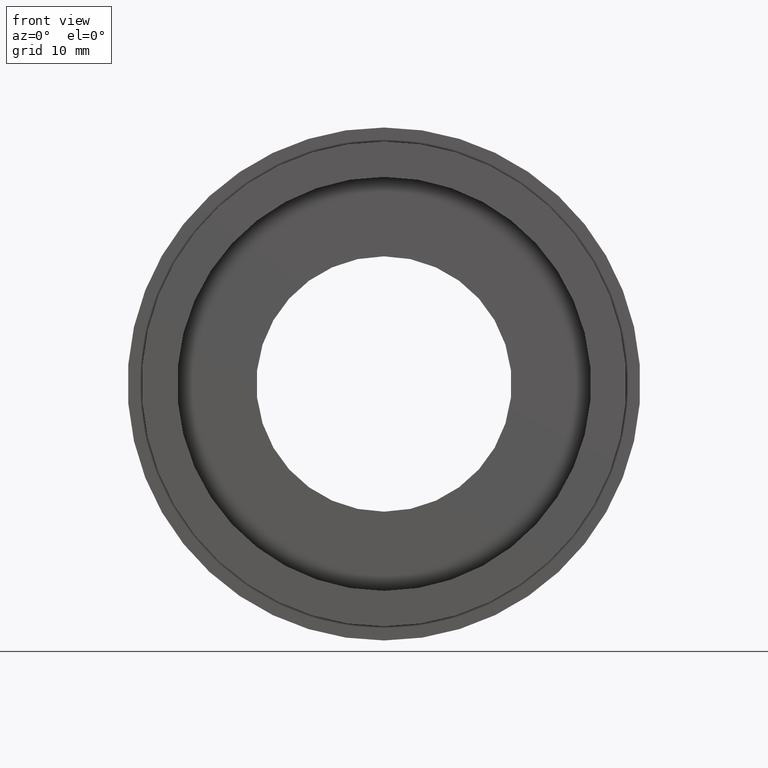
[diagram: clean part render]
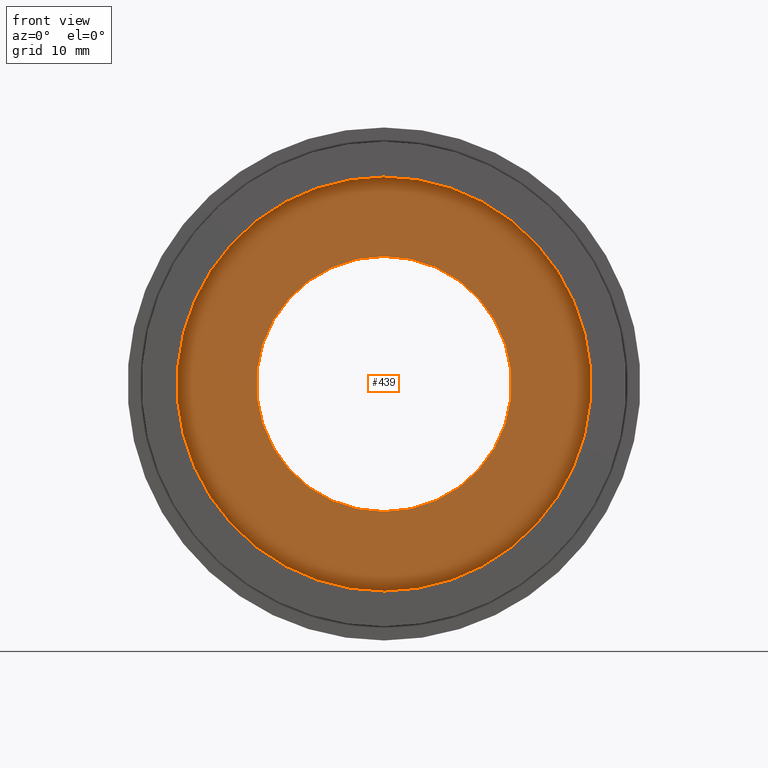
[diagram: same view with one face highlighted and labeled with its STEP entity id]
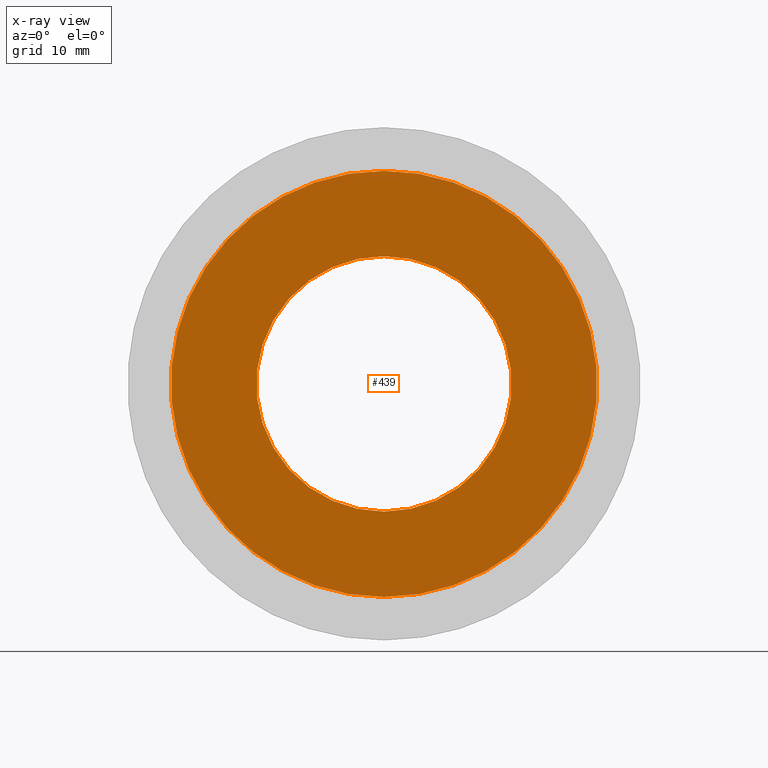
[diagram: x-ray of the same camera — body ghosted, the highlighted face saturated]
A machine part, front view. The second image highlights one B-rep face of the part: STEP entity #439.
The next image is the same camera in x-ray: the body ghosted, the highlighted face saturated — about 0% of this face is hidden behind the body in this view.
In plain terms, the highlighted planar face has unit normal (-0, 1, 0).
Its self-contained STEP definition (entity closure, byte-faithful):
#6 = EDGE_CURVE ( 'NONE', #411, #539, #68, .T. ) ;
#21 = DIRECTION ( 'NONE',  ( -0.0000000000000000000, 1.000000000000000000, -0.0000000000000000000 ) ) ;
#52 = DIRECTION ( 'NONE',  ( -0.0000000000000000000, 1.000000000000000000, -0.0000000000000000000 ) ) ;
#57 = ORIENTED_EDGE ( 'NONE', *, *, #313, .F. ) ;
#62 = EDGE_LOOP ( 'NONE', ( #81, #57 ) ) ;
#68 = CIRCLE ( 'NONE', #109, 12.64500000000000100 ) ;
#69 = AXIS2_PLACEMENT_3D ( 'NONE', #385, #52, #336 ) ;
#71 = CARTESIAN_POINT ( 'NONE',  ( 0.0000000000000000000, 5.000000000000000900, 0.0000000000000000000 ) ) ;
#81 = ORIENTED_EDGE ( 'NONE', *, *, #563, .F. ) ;
#109 = AXIS2_PLACEMENT_3D ( 'NONE', #229, #237, #206 ) ;
#112 = CIRCLE ( 'NONE', #122, 21.10000000000000100 ) ;
#117 = CARTESIAN_POINT ( 'NONE',  ( 21.10000000000000100, 5.000000000000000000, 0.0000000000000000000 ) ) ;
#122 = AXIS2_PLACEMENT_3D ( 'NONE', #71, #21, #310 ) ;
#124 = ORIENTED_EDGE ( 'NONE', *, *, #504, .T. ) ;
#133 = ORIENTED_EDGE ( 'NONE', *, *, #6, .T. ) ;
#156 = CIRCLE ( 'NONE', #69, 21.10000000000000100 ) ;
#170 = CARTESIAN_POINT ( 'NONE',  ( 0.0000000000000000000, 4.999999999999999100, 12.64500000000000100 ) ) ;
#202 = CARTESIAN_POINT ( 'NONE',  ( 1.548565877521828400E-015, 4.999999999999999100, -12.64500000000000100 ) ) ;
#206 = DIRECTION ( 'NONE',  ( 0.0000000000000000000, 0.0000000000000000000, 1.000000000000000000 ) ) ;
#207 = DIRECTION ( 'NONE',  ( 0.0000000000000000000, 0.0000000000000000000, 1.000000000000000000 ) ) ;
#229 = CARTESIAN_POINT ( 'NONE',  ( 0.0000000000000000000, 4.999999999999999100, 0.0000000000000000000 ) ) ;
#237 = DIRECTION ( 'NONE',  ( -0.0000000000000000000, 1.000000000000000000, -0.0000000000000000000 ) ) ;
#257 = FACE_OUTER_BOUND ( 'NONE', #62, .T. ) ;
#258 = CARTESIAN_POINT ( 'NONE',  ( 0.0000000000000000000, 4.999999999999999100, 0.0000000000000000000 ) ) ;
#306 = PLANE ( 'NONE',  #341 ) ;
#310 = DIRECTION ( 'NONE',  ( 0.0000000000000000000, 0.0000000000000000000, 1.000000000000000000 ) ) ;
#313 = EDGE_CURVE ( 'NONE', #345, #478, #112, .T. ) ;
#336 = DIRECTION ( 'NONE',  ( 0.0000000000000000000, 0.0000000000000000000, 1.000000000000000000 ) ) ;
#341 = AXIS2_PLACEMENT_3D ( 'NONE', #117, #579, #343 ) ;
#343 = DIRECTION ( 'NONE',  ( 0.0000000000000000000, 0.0000000000000000000, 1.000000000000000000 ) ) ;
#345 = VERTEX_POINT ( 'NONE', #595 ) ;
#385 = CARTESIAN_POINT ( 'NONE',  ( 0.0000000000000000000, 5.000000000000000900, 0.0000000000000000000 ) ) ;
#411 = VERTEX_POINT ( 'NONE', #170 ) ;
#434 = AXIS2_PLACEMENT_3D ( 'NONE', #258, #538, #207 ) ;
#439 = ADVANCED_FACE ( 'NONE', ( #257, #459 ), #306, .F. ) ;
#440 = EDGE_LOOP ( 'NONE', ( #133, #124 ) ) ;
#459 = FACE_BOUND ( 'NONE', #440, .T. ) ;
#478 = VERTEX_POINT ( 'NONE', #588 ) ;
#504 = EDGE_CURVE ( 'NONE', #539, #411, #586, .T. ) ;
#538 = DIRECTION ( 'NONE',  ( -0.0000000000000000000, 1.000000000000000000, -0.0000000000000000000 ) ) ;
#539 = VERTEX_POINT ( 'NONE', #202 ) ;
#563 = EDGE_CURVE ( 'NONE', #478, #345, #156, .T. ) ;
#579 = DIRECTION ( 'NONE',  ( -0.0000000000000000000, 1.000000000000000000, 0.0000000000000000000 ) ) ;
#586 = CIRCLE ( 'NONE', #434, 12.64500000000000100 ) ;
#588 = CARTESIAN_POINT ( 'NONE',  ( 0.0000000000000000000, 5.000000000000000900, 21.10000000000000100 ) ) ;
#595 = CARTESIAN_POINT ( 'NONE',  ( 2.584004746200915400E-015, 5.000000000000000900, -21.10000000000000100 ) ) ;